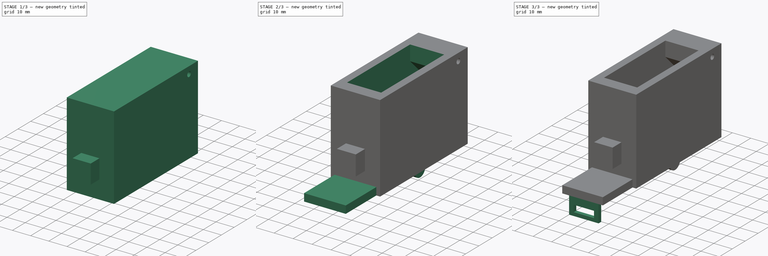
[diagram: build sequence overview — one tinted view per stage of 3, left to right]
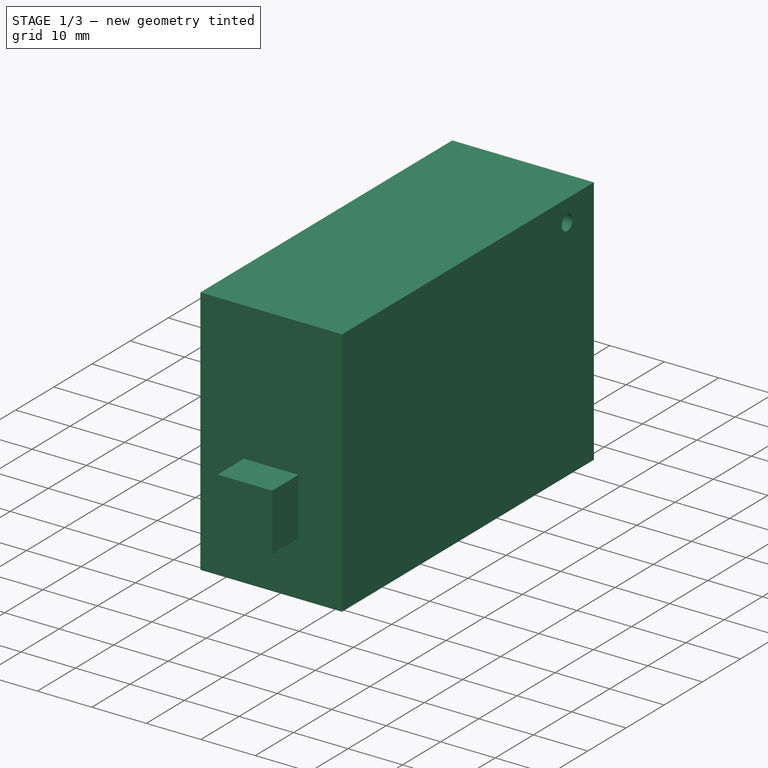
[diagram: stage 1 of 3 — iso view after this stage's code; geometry added in this stage tinted green]
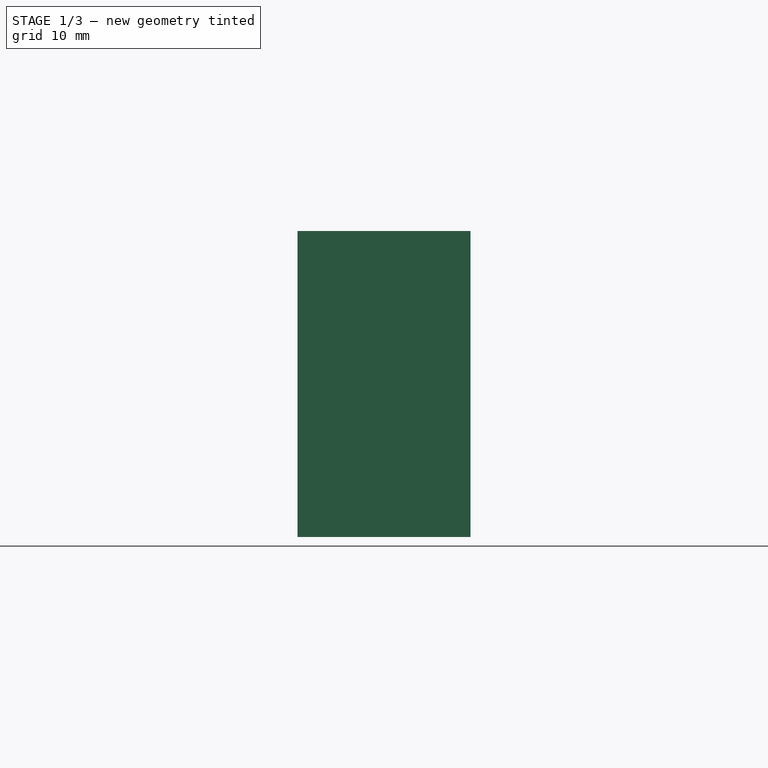
[diagram: stage 1 of 3 — front view after this stage's code; geometry added in this stage tinted green]
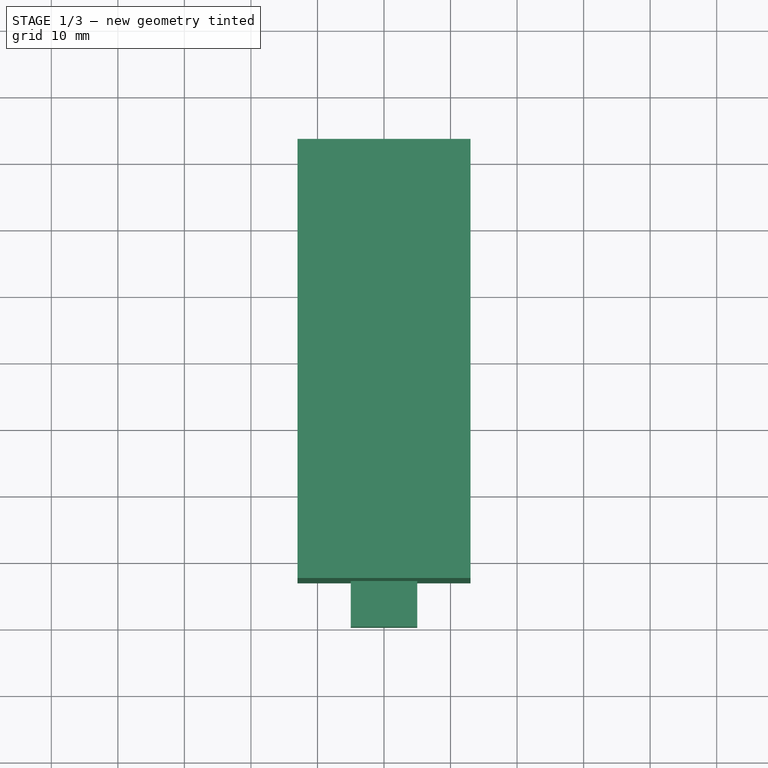
[diagram: stage 1 of 3 — top view after this stage's code; geometry added in this stage tinted green]
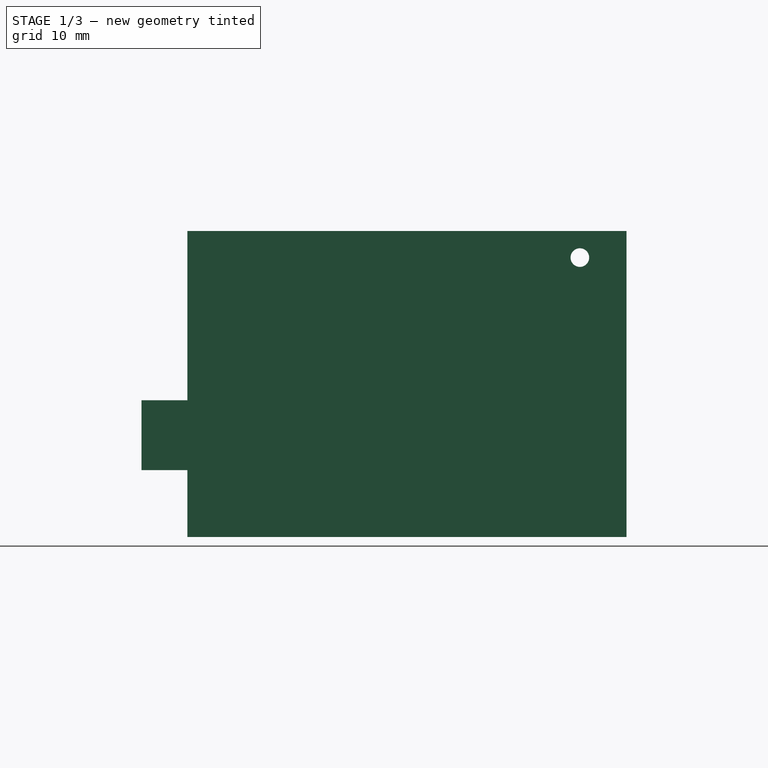
[diagram: stage 1 of 3 — right view after this stage's code; geometry added in this stage tinted green]
FCSTD DOCUMENT  (FreeCAD 0.19R24267 +99 (Git))
Label: Compartment
License: Creative Commons Attribution
LicenseURL: http://creativecommons.org/licenses/by/4.0/
objects: Sketcher::SketchObject×6, PartDesign::Pad×4, PartDesign::Body×3, PartDesign::Pocket×2
note: 21 computed .brp shape members not serialized (recipe doc carries the construction recipe); baked Part::Feature solids carry a one-line shape summary decoded from their .brp

FEATURE [PartDesign::Pad] Pad
  Direction = (1,1,1)
  Length = 26
  Length2 = 100
  Midplane = true
  Placement = pos=(0,0,0) rot=(0.57735,0.57735,0.57735;2.0944rad)
  Profile = -> Sketch
  Type = 0
FEATURE [PartDesign::Body] Body
  Group = -> [Sketch,Sketch001,Pad,Pocket001]
  Origin = -> Origin
  Tip = -> Pocket001
FEATURE [Sketcher::SketchObject] Sketch005
  FullyConstrained = false
  MapMode = 5
  Placement = pos=(0,0,0) rot=(0.57735,0.57735,0.57735;2.0944rad)
  Support = -> [YZ_Plane002]
  sketch-geometry (12):
    g0: LineSegment StartX=-39.8773 StartY=20.5618 StartZ=0 EndX=-30.1921 EndY=20.5618 EndZ=0
    g1: LineSegment StartX=-27.4472 StartY=33.957 StartZ=0 EndX=-24.058 EndY=33.957 EndZ=0
    g2: LineSegment StartX=-24.058 StartY=33.957 StartZ=0 EndX=-24.7769 EndY=37.4698 EndZ=0
    g3: LineSegment StartX=-24.7769 StartY=37.4698 StartZ=0 EndX=-28.8152 EndY=37.4698 EndZ=0
    g4: LineSegment StartX=-23.583 StartY=29.9296 StartZ=0 EndX=-23.583 EndY=10.0564 EndZ=0
    g5: LineSegment StartX=-23.583 StartY=10.0564 StartZ=0 EndX=-39.8773 EndY=10.0564 EndZ=0
    g6: Circle CenterX=-25.958 CenterY=27.4354 CenterZ=0 NormalX=0 NormalY=0 NormalZ=1 AngleXU=0 Radius=1.5
    g7: LineSegment StartX=-30.1921 StartY=35.6798 StartZ=0 EndX=-30.1921 EndY=20.5618 EndZ=0
    g8: LineSegment StartX=-23.583 StartY=29.9296 StartZ=0 EndX=-27.4472 EndY=29.9296 EndZ=0
    g9: LineSegment StartX=-27.4472 StartY=29.9296 StartZ=0 EndX=-27.4472 EndY=33.957 EndZ=0
    g10: LineSegment StartX=-39.8773 StartY=20.5618 StartZ=0 EndX=-39.8773 EndY=10.0564 EndZ=0
    g11: LineSegment StartX=-28.8152 StartY=37.4698 StartZ=0 EndX=-30.1921 EndY=35.6798 EndZ=0
  constraints (21):
    c: Horizontal(g0)
    c: Coincident(g1,g2)
    c: Coincident(g2,g3)
    c: Coincident(g4,g5)
    c: Horizontal(g5)
    c: Horizontal(g3)
    c: Vertical(g4)
    c: Horizontal(g1)
    c: Coincident(g4,g8)
    c: Horizontal(g8)
    c: Coincident(g8,g9)
    c: Coincident(g9,g1)
    c: Vertical(g9)
    c: Coincident(g7,g0)
    c: Coincident(g10,g0)
    c: Coincident(g10,g5)
    c: Vertical(g10)
    c: Diameter(g6) = 3
    c: Coincident(g3,g11)
    c: Coincident(g7,g11)
    c: Vertical(g7)
FEATURE [PartDesign::Pad] Pad003
  Direction = (1,1,1)
  Length = 10
  Length2 = 100
  Midplane = true
  Placement = pos=(0,0,0) rot=(0.57735,0.57735,0.57735;2.0944rad)
  Profile = -> Sketch005
  Type = 0
FEATURE [PartDesign::Body] Body002  label="ReleaseButton"
  Group = -> [Sketch005,Pad003]
  Origin = -> Origin002
  Tip = -> Pad003
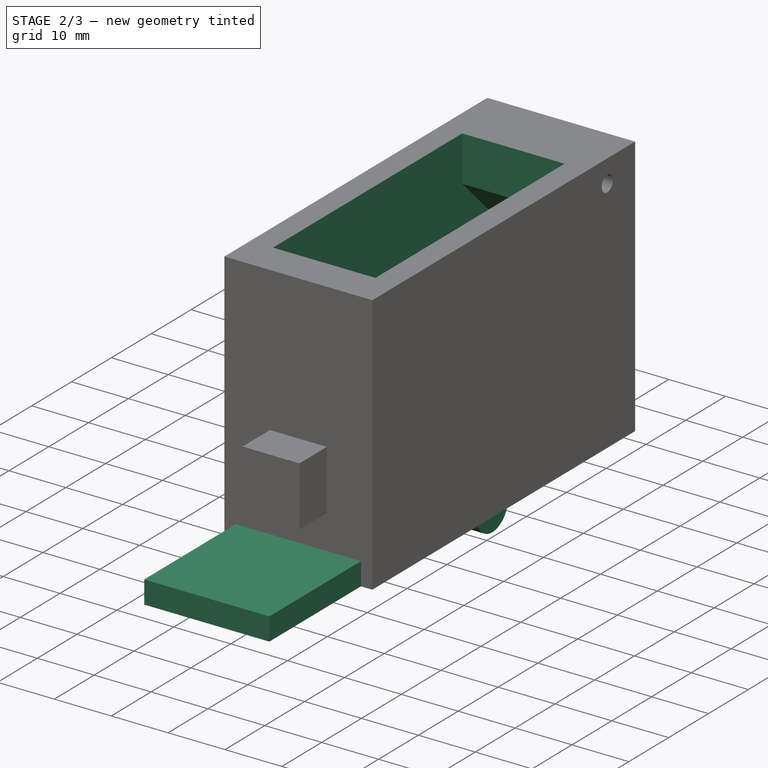
[diagram: stage 2 of 3 — iso view after this stage's code; geometry added in this stage tinted green]
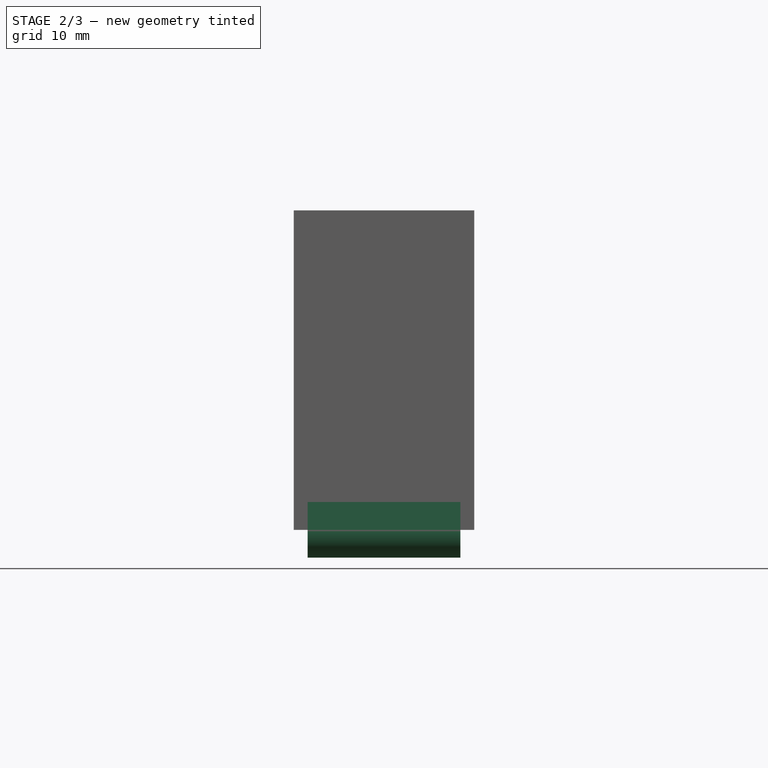
[diagram: stage 2 of 3 — front view after this stage's code; geometry added in this stage tinted green]
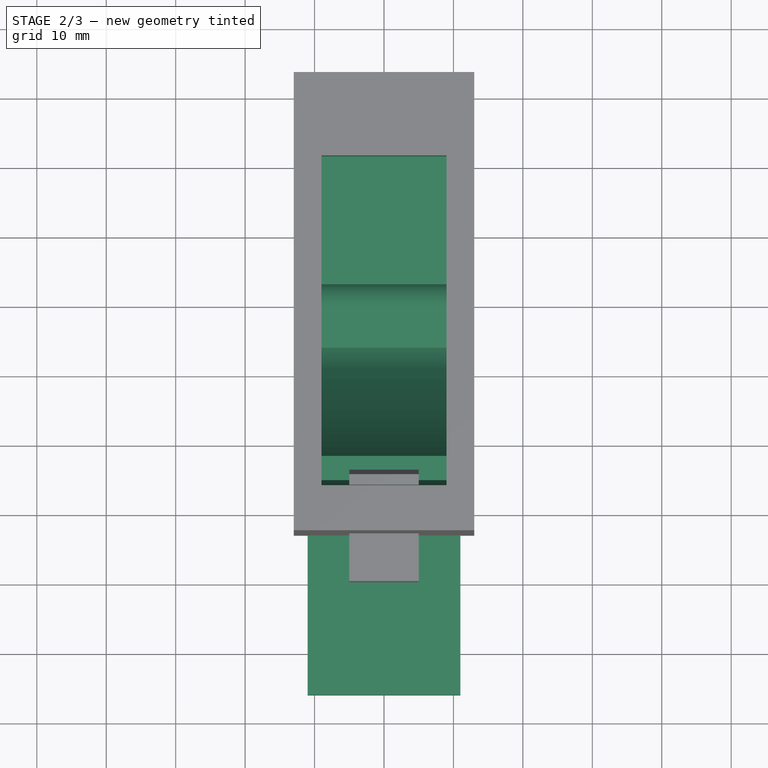
[diagram: stage 2 of 3 — top view after this stage's code; geometry added in this stage tinted green]
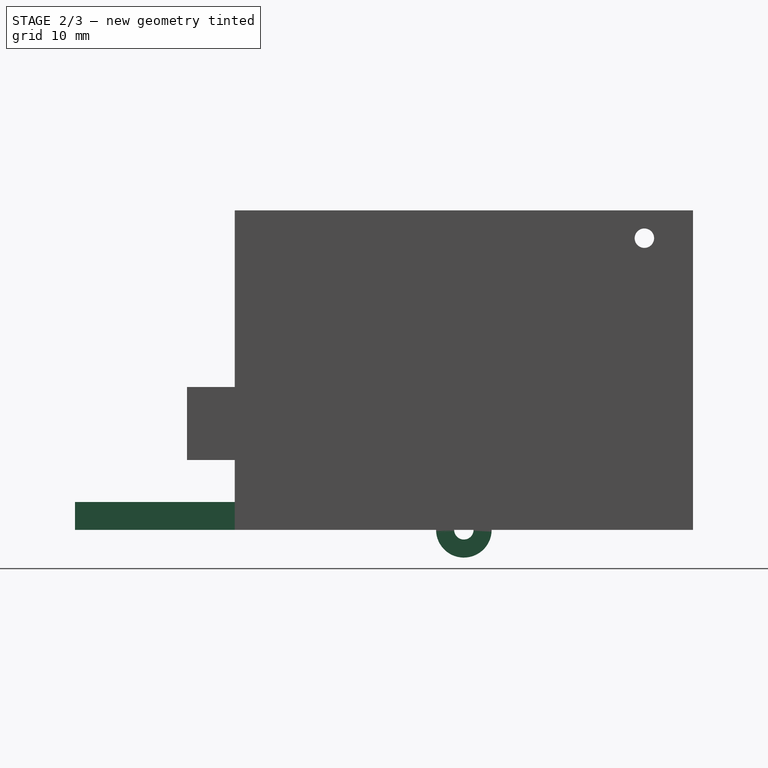
[diagram: stage 2 of 3 — right view after this stage's code; geometry added in this stage tinted green]
FEATURE [Sketcher::SketchObject] Sketch
  FullyConstrained = true
  MapMode = 5
  Placement = pos=(0,0,0) rot=(0.57735,0.57735,0.57735;2.0944rad)
  Support = -> [YZ_Plane]
  sketch-geometry (5):
    g0: LineSegment StartX=-33 StartY=46 StartZ=0 EndX=33 EndY=46 EndZ=0
    g1: LineSegment StartX=33 StartY=46 StartZ=0 EndX=33 EndY=0 EndZ=0
    g2: LineSegment StartX=33 StartY=0 StartZ=0 EndX=-33 EndY=0 EndZ=0
    g3: LineSegment StartX=-33 StartY=0 StartZ=0 EndX=-33 EndY=46 EndZ=0
    g4: Circle CenterX=26 CenterY=42 CenterZ=0 NormalX=0 NormalY=0 NormalZ=1 AngleXU=0 Radius=1.4
  constraints (14):
    c: Coincident(g0,g1)
    c: Coincident(g1,g2)
    c: Coincident(g2,g3)
    c: Coincident(g3,g0)
    c: Horizontal(g0)
    c: Vertical(g1)
    c: Vertical(g3)
    c: Symmetric(g1,g2,g-2)
    c: DistanceX(g2,g2) = 66
    c: PointOnObject(g-1,g2)
    c: DistanceY(g3,g3) = 46
    c: DistanceX(g-1,g4) = 26
    c: DistanceY(g1,g4) = 42
    c: Diameter(g4) = 2.8
FEATURE [Sketcher::SketchObject] Sketch001
  ExternalGeometry = -> [Sketch]
  FullyConstrained = true
  MapMode = 5
  Placement = pos=(0,0,0) rot=(0.57735,0.57735,0.57735;2.0944rad)
  Support = -> [YZ_Plane]
  sketch-geometry (10):
    g0: ArcOfCircle CenterX=31.7721 CenterY=43.3747 CenterZ=0 NormalX=0 NormalY=0 NormalZ=1 AngleXU=0 Radius=55 StartAngle=3.34991 EndAngle=3.88097
    g1: ArcOfCircle CenterX=0 CenterY=14.4 CenterZ=0 NormalX=0 NormalY=0 NormalZ=1 AngleXU=0 Radius=12 StartAngle=3.88097 EndAngle=4.71239
    g2: LineSegment StartX=-2.2e-15 StartY=2.4 StartZ=0 EndX=31 EndY=2.4 EndZ=0
    g3: LineSegment StartX=31 StartY=2.4 StartZ=0 EndX=31 EndY=28 EndZ=0
    g4: LineSegment StartX=31 StartY=28 StartZ=0 EndX=21 EndY=38 EndZ=0
    g5: LineSegment StartX=21 StartY=38 StartZ=0 EndX=21 EndY=46 EndZ=0
    g6: LineSegment StartX=21 StartY=46 StartZ=0 EndX=-26.5 EndY=46 EndZ=0
    g7: ArcOfCircle CenterX=26 CenterY=42 CenterZ=0 NormalX=0 NormalY=0 NormalZ=1 AngleXU=0 Radius=52.5 StartAngle=3.14159 EndAngle=3.33324
    g8: LineSegment StartX=-26.5 StartY=42 StartZ=0 EndX=-26.5 EndY=46 EndZ=0
    g9: LineSegment StartX=-22.0388 StartY=32 StartZ=0 EndX=-25.5388 EndY=32 EndZ=0
  constraints (30):
    c: Tangent(g0,g1) = -1.5708
    c: Tangent(g1,g2) = -1.5708
    c: Coincident(g2,g3)
    c: Vertical(g3)
    c: Coincident(g3,g4)
    c: Coincident(g4,g5)
    c: Vertical(g5)
    c: Coincident(g5,g6)
    c: Horizontal(g6)
    c: Horizontal(g2)
    c: DistanceY(g-1,g2) = 2.4
    c: Angle(g4,g3) = 2.35619
    c: DistanceY(g5,g5) = 8
    c: DistanceY(g-1,g6) = 46
    c: DistanceX(g5,g3) = 10
    c: PointOnObject(g1,g-2)
    c: Radius(g1) = 12
    c: Coincident(g7,g-3)
    c: Coincident(g8,g7)
    c: Vertical(g8)
    c: Coincident(g9,g7)
    c: Horizontal(g9)
    c: DistanceY(g7,g7) = 10
    c: DistanceX(g1,g2) = 31
    c: DistanceY(g8,g8) = 4
    c: Coincident(g6,g8)
    c: Coincident(g0,g9)
    c: DistanceX(g6,g6) = 47.5
    c: DistanceX(g9,g9) = 3.5
    c: Radius(g0) = 55
FEATURE [Sketcher::SketchObject] Sketch002
  FullyConstrained = true
  MapMode = 5
  Placement = pos=(0,0,0) rot=(0.57735,0.57735,0.57735;2.0944rad)
  Support = -> [YZ_Plane001]
  sketch-geometry (5):
    g0: LineSegment StartX=-56 StartY=4 StartZ=0 EndX=-56 EndY=4e-16 EndZ=0
    g1: LineSegment StartX=-56 StartY=5e-16 StartZ=0 EndX=-4 EndY=5e-16 EndZ=0
    g2: LineSegment StartX=2.3141e-05 StartY=4 StartZ=0 EndX=-56 EndY=4 EndZ=0
    g3: Circle CenterX=0 CenterY=0 CenterZ=0 NormalX=0 NormalY=0 NormalZ=1 AngleXU=0 Radius=1.4
    g4: ArcOfCircle CenterX=0 CenterY=0 CenterZ=0 NormalX=0 NormalY=0 NormalZ=1 AngleXU=0 Radius=4 StartAngle=3.14159 EndAngle=7.85398
  constraints (14):
    c: Vertical(g0)
    c: Horizontal(g1)
    c: Coincident(g2,g0)
    c: Horizontal(g2)
    c: Coincident(g3,g-1)
    c: Diameter(g3) = 2.8
    c: Coincident(g4,g3)
    c: Coincident(g2,g4)
    c: Tangent(g2,g4)
    c: DistanceY(g0,g0) = 4
    c: Coincident(g4,g1)
    c: Perpendicular(g4,g1)
    c: DistanceX(g2,g2) = 56
    c: Coincident(g1,g0)
FEATURE [PartDesign::Pad] Pad001
  Direction = (1,1,1)
  Length = 22
  Length2 = 100
  Midplane = true
  Placement = pos=(0,0,0) rot=(0.57735,0.57735,0.57735;2.0944rad)
  Profile = -> Sketch002
  Type = 0
FEATURE [PartDesign::Body] Body001  label="Deckel"
  Group = -> [Sketch002,Pad001,Sketch003,Pad002,Sketch004,Pocket]
  Origin = -> Origin001
  Placement = pos=(0,26,42) rot=(0,0,1;0rad)
  Tip = -> Pocket
FEATURE [PartDesign::Pocket] Pocket001
  BaseFeature = -> Pad
  Length = 18
  Length2 = 100
  Midplane = true
  Placement = pos=(0,0,0) rot=(0.57735,0.57735,0.57735;2.0944rad)
  Profile = -> Sketch001
  Type = 0
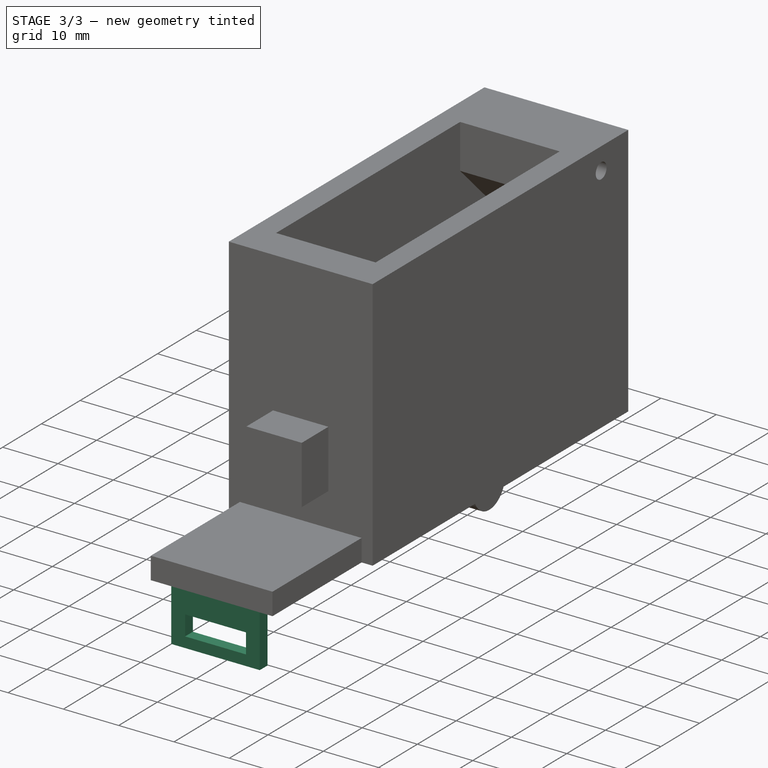
[diagram: stage 3 of 3 — iso view after this stage's code; geometry added in this stage tinted green]
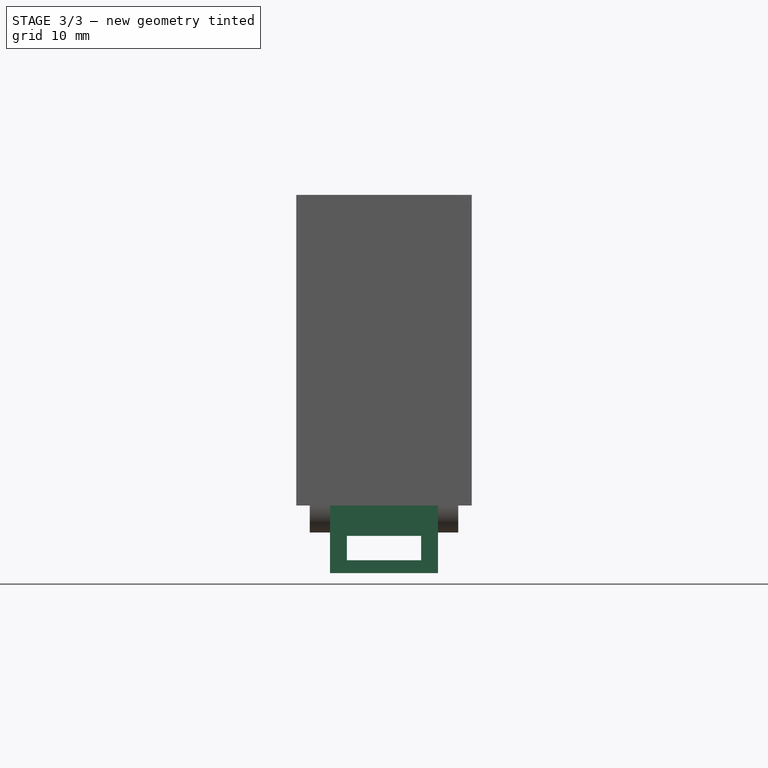
[diagram: stage 3 of 3 — front view after this stage's code; geometry added in this stage tinted green]
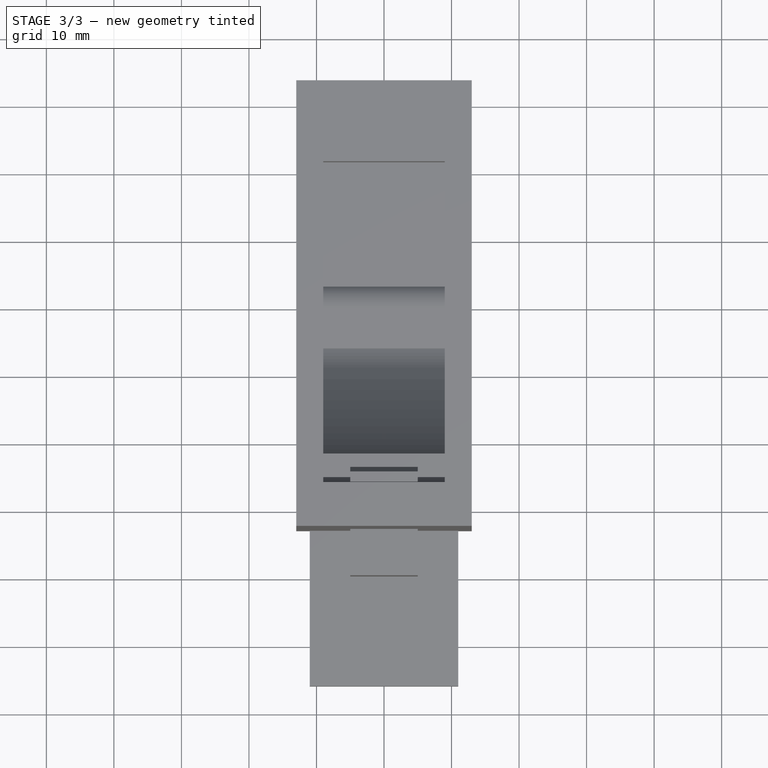
[diagram: stage 3 of 3 — top view after this stage's code; geometry added in this stage tinted green]
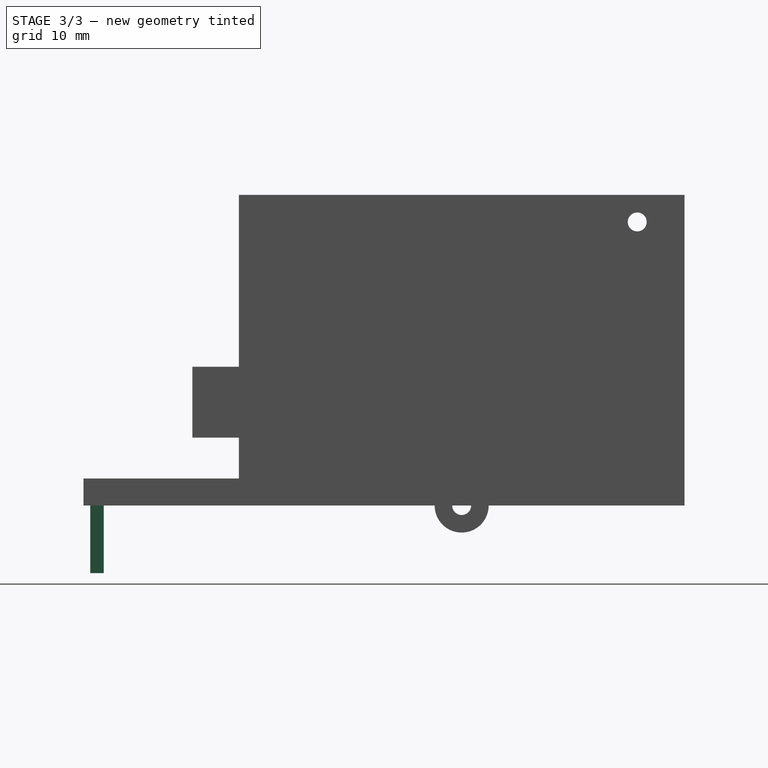
[diagram: stage 3 of 3 — right view after this stage's code; geometry added in this stage tinted green]
FEATURE [Sketcher::SketchObject] Sketch003
  ExternalGeometry = -> [Sketch002]
  FullyConstrained = true
  MapMode = 5
  Placement = pos=(0,0,0) rot=(0.57735,0.57735,0.57735;2.0944rad)
  Support = -> [YZ_Plane001]
  sketch-geometry (4):
    g0: LineSegment StartX=-55 StartY=-1.8e-15 StartZ=0 EndX=-53 EndY=-1.8e-15 EndZ=0
    g1: LineSegment StartX=-53 StartY=-1.8e-15 StartZ=0 EndX=-53 EndY=-10 EndZ=0
    g2: LineSegment StartX=-53 StartY=-10 StartZ=0 EndX=-55 EndY=-10 EndZ=0
    g3: LineSegment StartX=-55 StartY=-10 StartZ=0 EndX=-55 EndY=-1.8e-15 EndZ=0
  constraints (12):
    c: Coincident(g0,g1)
    c: Coincident(g1,g2)
    c: Coincident(g2,g3)
    c: Coincident(g3,g0)
    c: Horizontal(g0)
    c: Horizontal(g2)
    c: Vertical(g1)
    c: Vertical(g3)
    c: DistanceX(g2,g2) = 2
    c: DistanceY(g3,g3) = 10
    c: Horizontal(g0,g-3)
    c: DistanceX(g-3,g0) = 1
FEATURE [PartDesign::Pad] Pad002
  BaseFeature = -> Pad001
  Direction = (1,1,1)
  Length = 16
  Length2 = 100
  Midplane = true
  Placement = pos=(0,0,0) rot=(0.57735,0.57735,0.57735;2.0944rad)
  Profile = -> Sketch003
  Type = 0
FEATURE [Sketcher::SketchObject] Sketch004
  FullyConstrained = true
  MapMode = 5
  Placement = pos=(0,0,0) rot=(1,0,0;1.5708rad)
  Support = -> [XZ_Plane001]
  sketch-geometry (4):
    g0: LineSegment StartX=-5.5 StartY=-4.5 StartZ=0 EndX=5.5 EndY=-4.5 EndZ=0
    g1: LineSegment StartX=5.5 StartY=-4.5 StartZ=0 EndX=5.5 EndY=-8.1 EndZ=0
    g2: LineSegment StartX=5.5 StartY=-8.1 StartZ=0 EndX=-5.5 EndY=-8.1 EndZ=0
    g3: LineSegment StartX=-5.5 StartY=-8.1 StartZ=0 EndX=-5.5 EndY=-4.5 EndZ=0
  constraints (11):
    c: Coincident(g0,g1)
    c: Coincident(g1,g2)
    c: Coincident(g2,g3)
    c: Coincident(g3,g0)
    c: Horizontal(g2)
    c: Vertical(g1)
    c: Vertical(g3)
    c: Symmetric(g0,g0,g-2)
    c: DistanceX(g2,g2) = 11
    c: DistanceY(g0,g-1) = 4.5
    c: DistanceY(g3,g3) = 3.6
FEATURE [PartDesign::Pocket] Pocket
  BaseFeature = -> Pad002
  Length = 5
  Length2 = 100
  Placement = pos=(0,0,0) rot=(0.57735,0.57735,0.57735;2.0944rad)
  Profile = -> Sketch004
  Reversed = true
  Type = 1
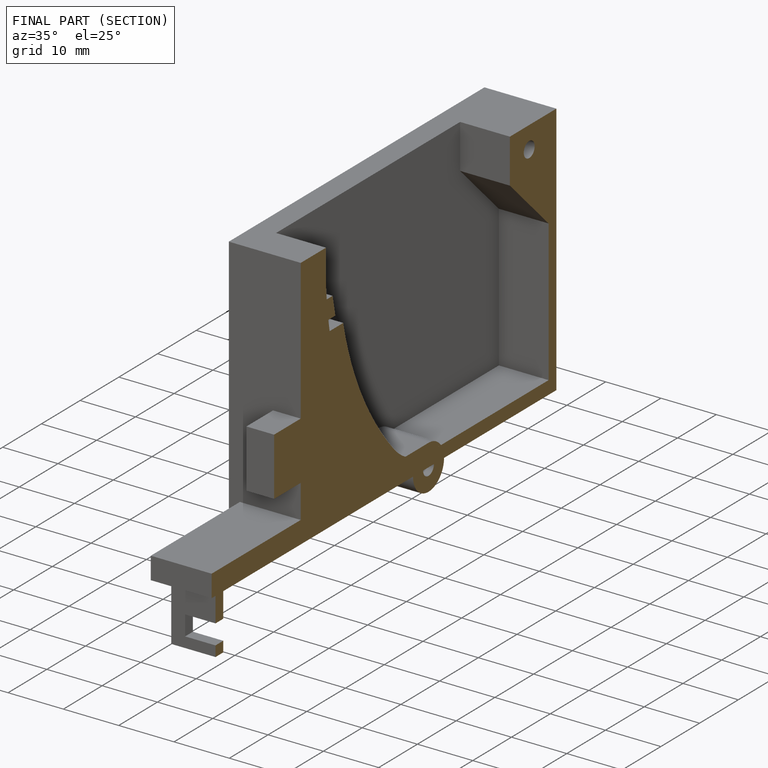
[diagram: finished part — half-section view (interior)]
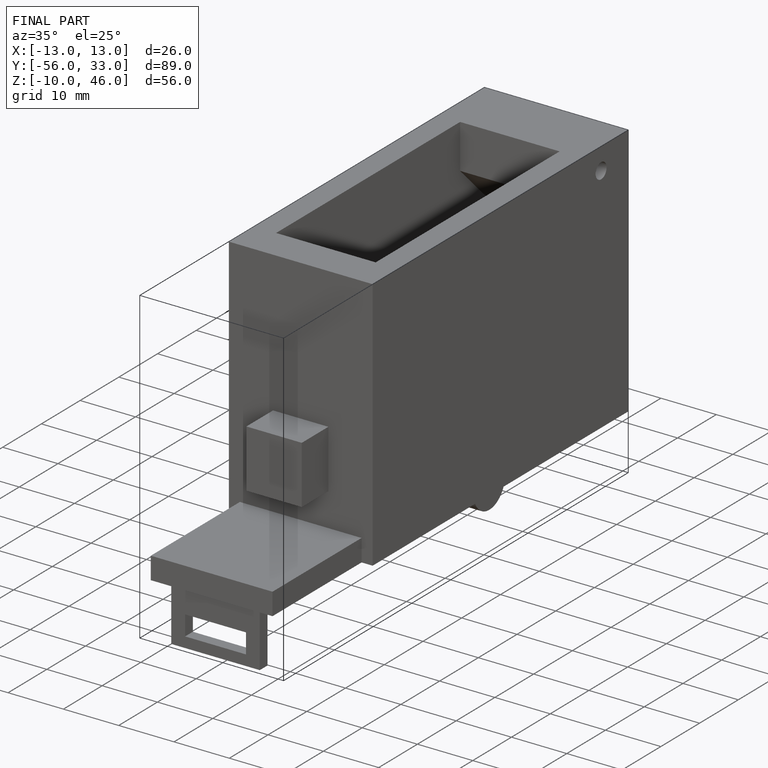
[diagram: finished part — iso view with bounding-box wireframe]
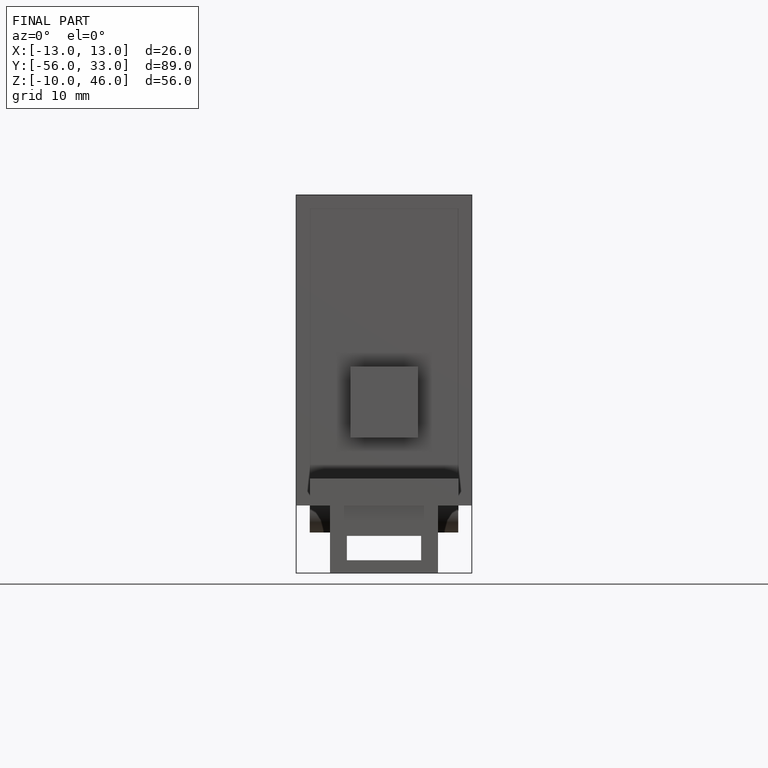
[diagram: finished part — front view with bounding-box wireframe]
